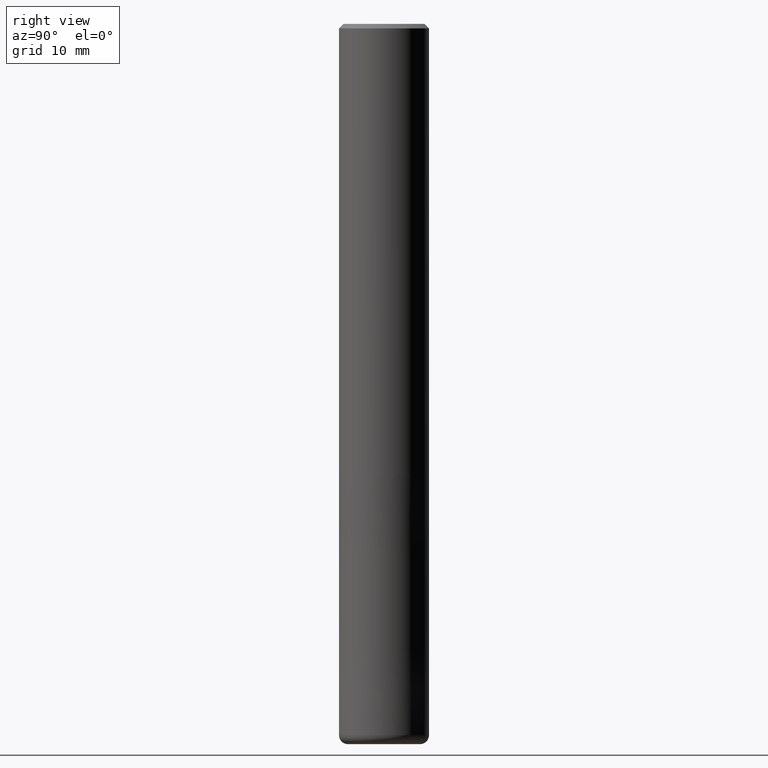
[diagram: clean part render]
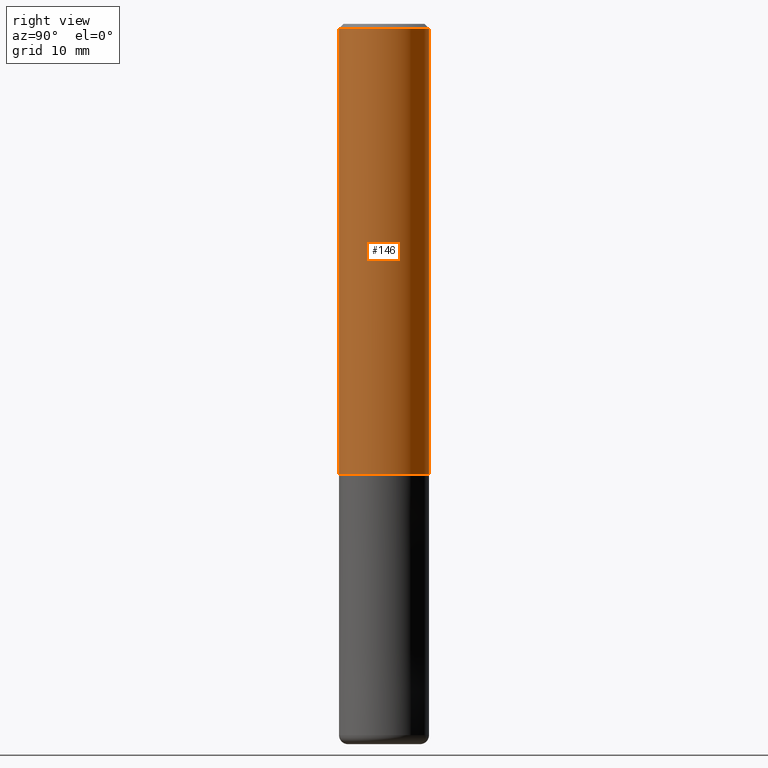
[diagram: same view with one face highlighted and labeled with its STEP entity id]
A machine part, right view. The second image highlights one B-rep face of the part: STEP entity #146.
In plain terms, the highlighted cylindrical surface (partial cylindrical patch) has radius 5 mm, axis along (-0, -0, 1).
Its self-contained STEP definition (entity closure, byte-faithful):
#108=EDGE_CURVE('',#120,#218,#269,.T.);
#114=EDGE_CURVE('',#224,#120,#275,.T.);
#120=VERTEX_POINT('',#283);
#138=EDGE_CURVE('',#224,#202,#302,.T.);
#146=ADVANCED_FACE('',(#312),#313,.T.);
#202=VERTEX_POINT('',#378);
#218=VERTEX_POINT('',#397);
#224=VERTEX_POINT('',#403);
#226=EDGE_CURVE('',#218,#202,#405,.T.);
#269=CIRCLE('',#442,5.0);
#275=LINE('',#451,#452);
#283=CARTESIAN_POINT('',(0.0,5.0,-50.0));
#302=CIRCLE('',#487,5.0);
#312=FACE_OUTER_BOUND('',#498,.T.);
#313=CYLINDRICAL_SURFACE('',#499,5.0);
#378=CARTESIAN_POINT('',(6.12303176911189E-016,-5.0,-0.5));
#397=CARTESIAN_POINT('',(6.12303176911189E-016,-5.0,-50.0));
#403=CARTESIAN_POINT('',(0.0,5.0,-0.5));
#405=LINE('',#610,#611);
#442=AXIS2_PLACEMENT_3D('',#641,#642,#643);
#451=CARTESIAN_POINT('',(-6.12303176911189E-016,5.0,-25.25));
#452=VECTOR('',#650,1.0);
#487=AXIS2_PLACEMENT_3D('',#683,#684,#685);
#498=EDGE_LOOP('',(#698,#699,#700,#701));
#499=AXIS2_PLACEMENT_3D('',#702,#703,#704);
#610=CARTESIAN_POINT('',(6.12303176911189E-016,-5.0,-25.25));
#611=VECTOR('',#822,1.0);
#641=CARTESIAN_POINT('',(0.0,0.0,-50.0));
#642=DIRECTION('',(0.0,0.0,-1.0));
#643=DIRECTION('',(0.0,1.0,0.0));
#650=DIRECTION('',(0.0,0.0,-1.0));
#683=CARTESIAN_POINT('',(0.0,0.0,-0.5));
#684=DIRECTION('',(0.0,0.0,-1.0));
#685=DIRECTION('',(0.0,1.0,0.0));
#698=ORIENTED_EDGE('',*,*,#114,.F.);
#699=ORIENTED_EDGE('',*,*,#138,.T.);
#700=ORIENTED_EDGE('',*,*,#226,.F.);
#701=ORIENTED_EDGE('',*,*,#108,.F.);
#702=CARTESIAN_POINT('',(0.0,0.0,-25.25));
#703=DIRECTION('',(-0.0,-0.0,1.0));
#704=DIRECTION('',(0.0,1.0,0.0));
#822=DIRECTION('',(-0.0,-0.0,1.0));